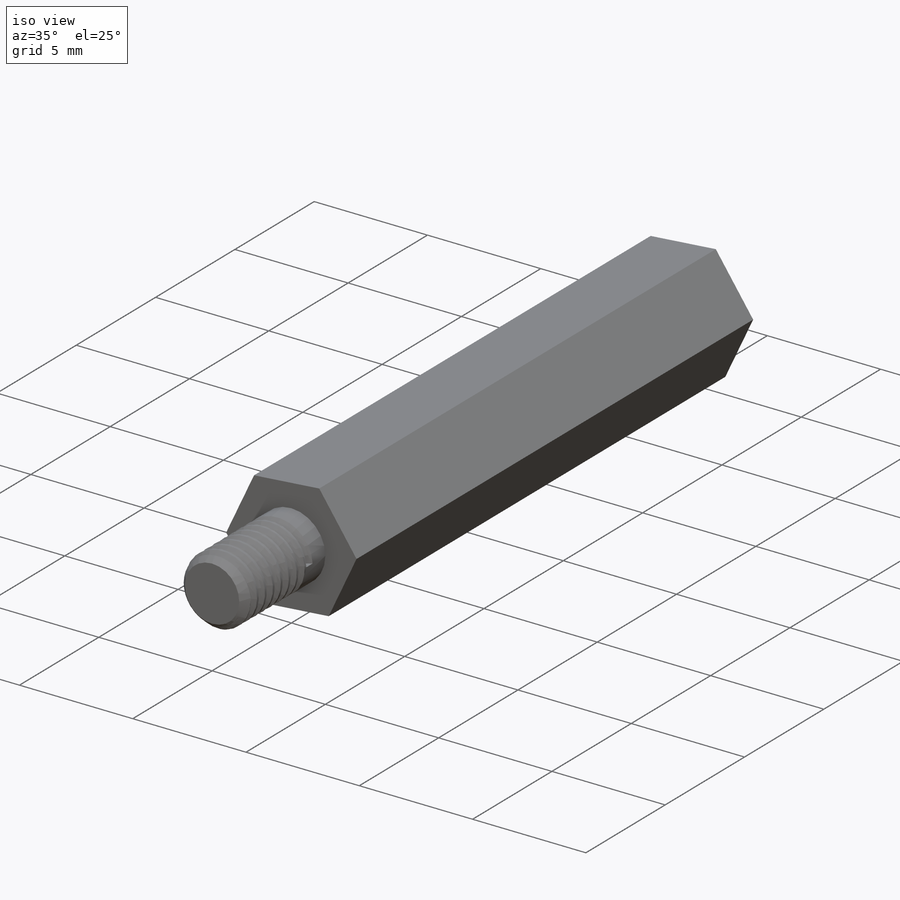
[diagram: iso view]
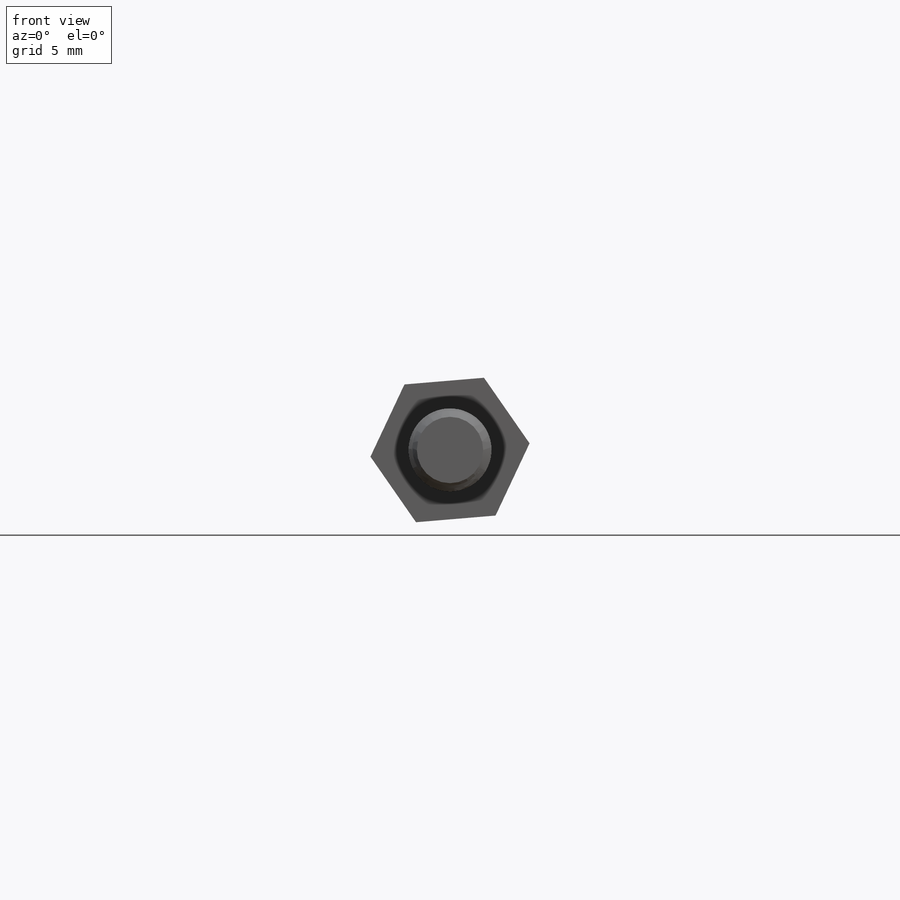
[diagram: front view]
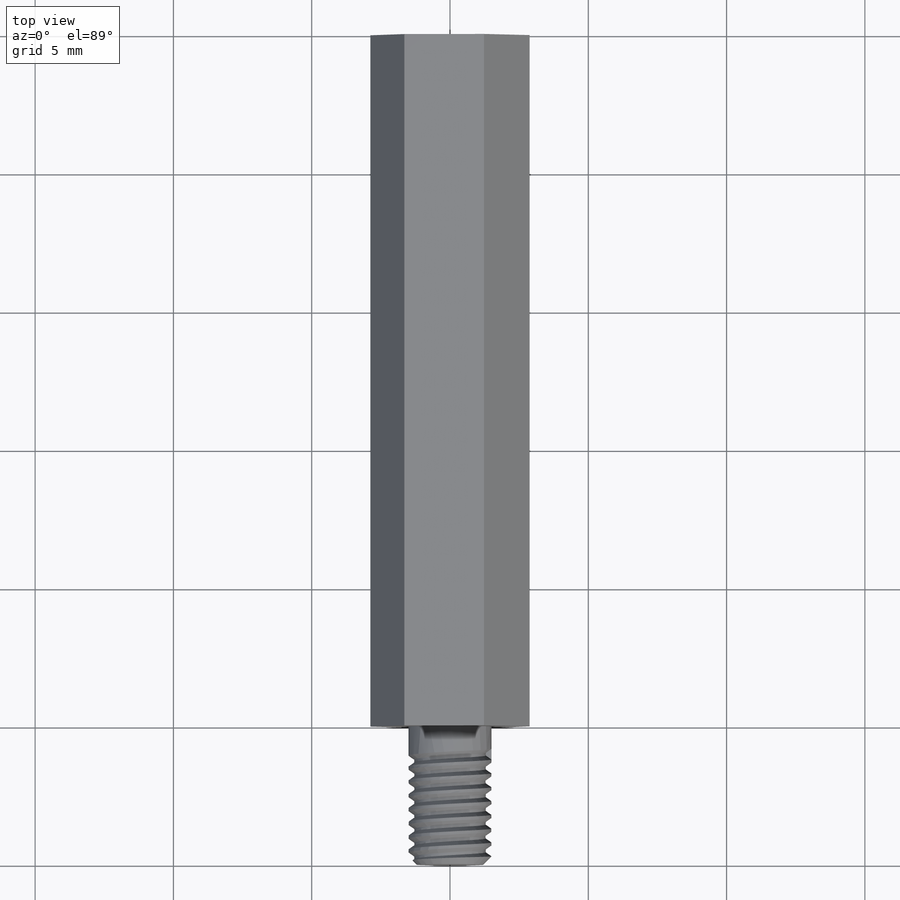
[diagram: top view]
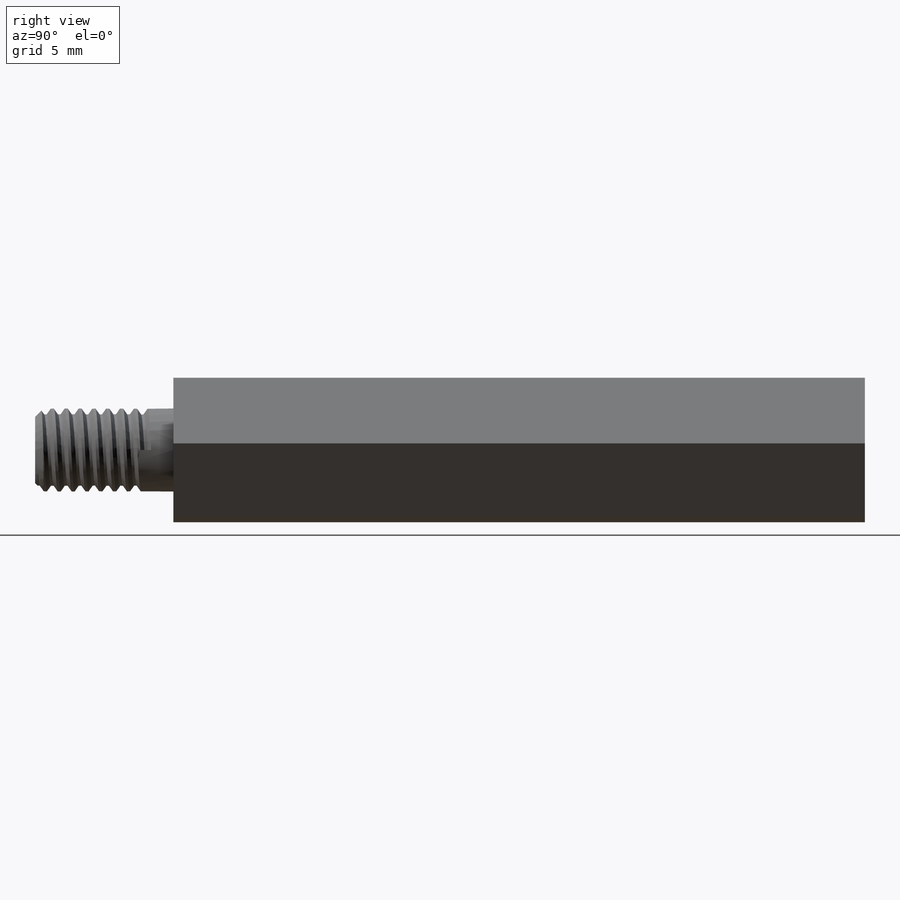
[diagram: right view]
SOLIDWORKS PART (.sldprt)
format: sldprt  version: not decoded by parser v0  size: 386,048 bytes
history: native  units: mm
features: sketch x6, thread x5, plane x3, extrude x2, material x1, hole x1, chamfer x1, helix x1, sweep x1 (+10 scaffold rows collapsed)
feature tree (31):
  scaffold x10  (default folders/planes/origin — collapsed)
  material  "材质 <未指定>"
  plane  "前视基准面"
  plane  "上视基准面"
  plane  "右视基准面"
  sketch  "草图1"  dims[D1=3.0mm D2=5.0mm]
  extrude  "凸台-拉伸1"  Depth=25mm
  hole  "M3 螺纹孔1"  [1 undecoded]
  sketch  "3D草图1"
  sketch  "草图2"  dims[hole-wizard template sketch: 47 standard entries collapsed; hole parameters kept: c15.螺纹孔钻头深度=15.0mm c15.D3=~14.816244mm c15.导头角度=118.0deg]
  thread  "孔螺蚊线1"  Diameter=10mm  [1 undecoded]
  thread  "孔螺蚊线2"  Diameter=10mm  [1 undecoded]
  thread  "孔螺蚊线3"  Diameter=10mm  [1 undecoded]
  thread  "孔螺蚊线4"  Diameter=10mm  [1 undecoded]
  thread  "孔螺蚊线5"  Diameter=10mm  [1 undecoded]
  sketch  "草图3"  dims[D1=3.0mm]
  extrude  "凸台-拉伸2"  Depth=5mm
  chamfer  "倒角1"  Distance=0.3mm Angle=45deg
  sketch  "草图4"
  helix  "螺旋线/涡状线1"  Pitch=4mm
  sketch  "草图5"  dims[D1=0.45mm D2=0.1mm D3=0.25mm]
  sweep  "切除-扫描2"
decode coverage: 13 of 17 modeling features carry decoded parameters
note: ~ marks probable driven/reference dimensions
note: 6 parameter values undecoded
note: suppression state not decoded; provenance and decode notes live in map.json
